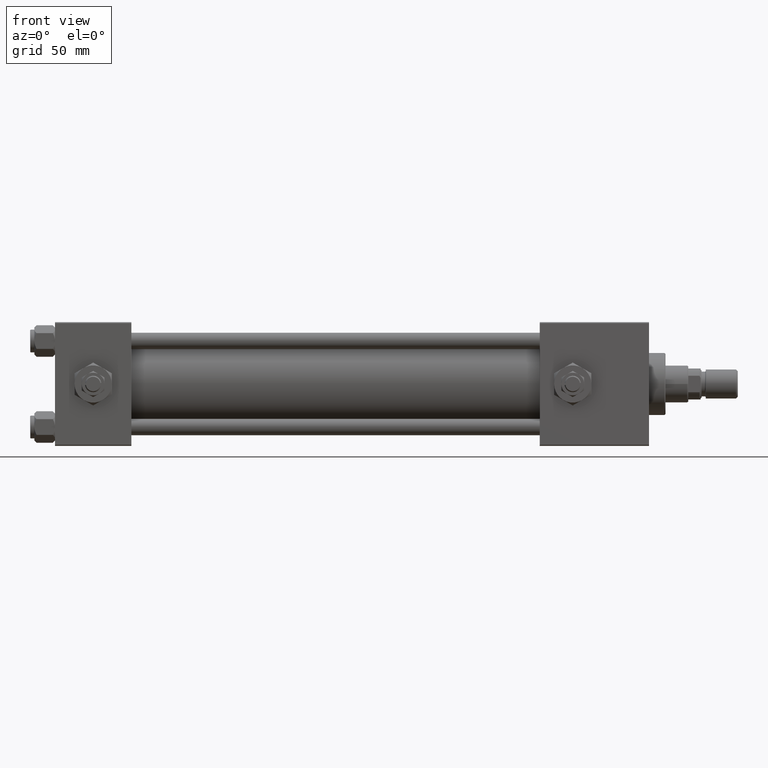
[diagram: clean part render]
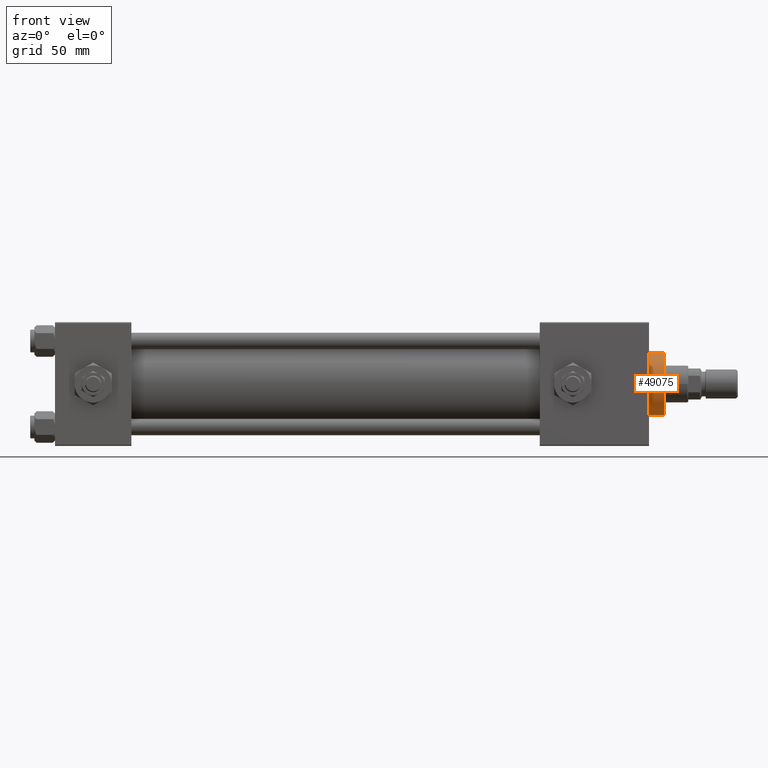
[diagram: same view with one face highlighted and labeled with its STEP entity id]
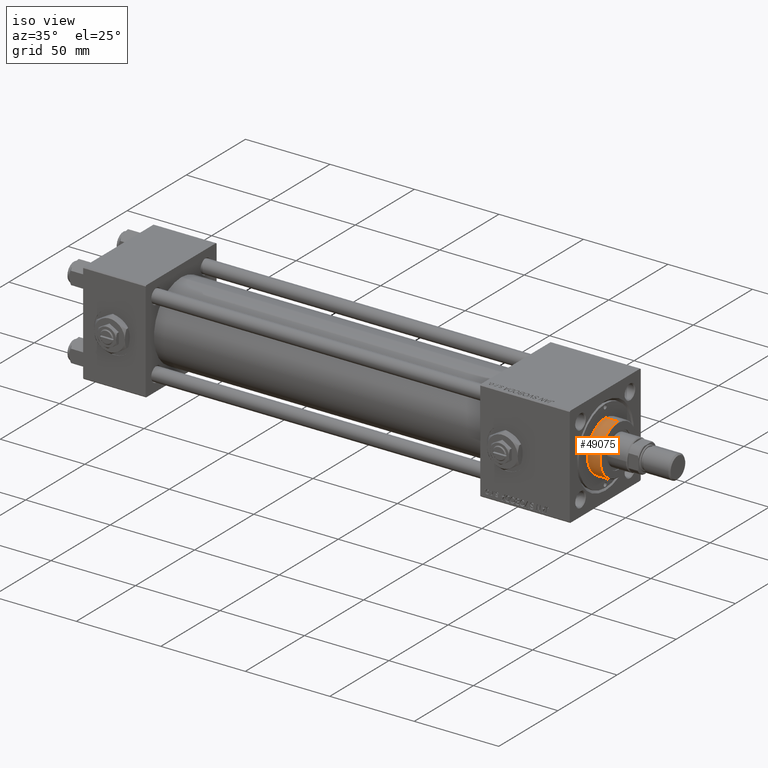
[diagram: same view with one face highlighted and labeled with its STEP entity id]
A machine part, front view. The second image highlights one B-rep face of the part: STEP entity #49075.
A second angle (iso view) of the same face is appended — the face is thin or edge-on in the first view.
In plain terms, the highlighted cylindrical surface (edge-blend (fillet) strip) has radius 15 mm, axis along (-1, -0, -0).
Its self-contained STEP definition (entity closure, byte-faithful):
#1168 = DIRECTION ( 'NONE',  ( -0.000000000000000000, -0.000000000000000000, -1.000000000000000000 ) ) ;
#1674 = VERTEX_POINT ( 'NONE', #7887 ) ;
#2731 = EDGE_CURVE ( 'NONE', #29834, #14965, #10314, .T. ) ;
#3456 = DIRECTION ( 'NONE',  ( 0.000000000000000000, 0.000000000000000000, 1.000000000000000000 ) ) ;
#3679 = CARTESIAN_POINT ( 'NONE',  ( -15.00000000000000000, 0.000000000000000000, 28.69999999999999929 ) ) ;
#5152 = CARTESIAN_POINT ( 'NONE',  ( 15.00000000000000000, 1.836970198721029589E-15, 28.69999999999999929 ) ) ;
#5186 = CYLINDRICAL_SURFACE ( 'NONE', #34503, 15.00000000000000000 ) ;
#5355 = CARTESIAN_POINT ( 'NONE',  ( -15.00000000000000000, 0.000000000000000000, 36.20000000000000284 ) ) ;
#7086 = CIRCLE ( 'NONE', #7910, 15.00000000000000000 ) ;
#7328 = LINE ( 'NONE', #31933, #32104 ) ;
#7887 = CARTESIAN_POINT ( 'NONE',  ( 15.00000000000000000, 1.836970198721029589E-15, 36.20000000000000284 ) ) ;
#7910 = AXIS2_PLACEMENT_3D ( 'NONE', #11753, #3456, #44390 ) ;
#8128 = DIRECTION ( 'NONE',  ( -1.000000000000000000, 0.000000000000000000, 0.000000000000000000 ) ) ;
#10314 = LINE ( 'NONE', #38914, #22893 ) ;
#10552 = EDGE_CURVE ( 'NONE', #1674, #10810, #7328, .T. ) ;
#10810 = VERTEX_POINT ( 'NONE', #5152 ) ;
#11753 = CARTESIAN_POINT ( 'NONE',  ( 0.000000000000000000, 0.000000000000000000, 28.69999999999999929 ) ) ;
#12992 = EDGE_LOOP ( 'NONE', ( #25597, #38789, #22187, #30447 ) ) ;
#14539 = CARTESIAN_POINT ( 'NONE',  ( 0.000000000000000000, 0.000000000000000000, 36.20000000000000284 ) ) ;
#14965 = VERTEX_POINT ( 'NONE', #3679 ) ;
#22187 = ORIENTED_EDGE ( 'NONE', *, *, #2731, .T. ) ;
#22893 = VECTOR ( 'NONE', #24858, 1000.000000000000000 ) ;
#24858 = DIRECTION ( 'NONE',  ( -0.000000000000000000, -0.000000000000000000, -1.000000000000000000 ) ) ;
#25597 = ORIENTED_EDGE ( 'NONE', *, *, #10552, .F. ) ;
#29834 = VERTEX_POINT ( 'NONE', #5355 ) ;
#30447 = ORIENTED_EDGE ( 'NONE', *, *, #42624, .T. ) ;
#31933 = CARTESIAN_POINT ( 'NONE',  ( 15.00000000000000000, 1.836970198721029589E-15, 36.69999999999999574 ) ) ;
#32104 = VECTOR ( 'NONE', #35669, 1000.000000000000000 ) ;
#34503 = AXIS2_PLACEMENT_3D ( 'NONE', #37818, #1168, #8128 ) ;
#35372 = DIRECTION ( 'NONE',  ( 0.000000000000000000, 0.000000000000000000, -1.000000000000000000 ) ) ;
#35669 = DIRECTION ( 'NONE',  ( -0.000000000000000000, -0.000000000000000000, -1.000000000000000000 ) ) ;
#37818 = CARTESIAN_POINT ( 'NONE',  ( 0.000000000000000000, 0.000000000000000000, 36.69999999999999574 ) ) ;
#38789 = ORIENTED_EDGE ( 'NONE', *, *, #44418, .T. ) ;
#38914 = CARTESIAN_POINT ( 'NONE',  ( -15.00000000000000000, 0.000000000000000000, 36.69999999999999574 ) ) ;
#41844 = FACE_OUTER_BOUND ( 'NONE', #12992, .T. ) ;
#42624 = EDGE_CURVE ( 'NONE', #14965, #10810, #7086, .T. ) ;
#44390 = DIRECTION ( 'NONE',  ( 1.000000000000000000, 0.000000000000000000, 0.000000000000000000 ) ) ;
#44418 = EDGE_CURVE ( 'NONE', #1674, #29834, #44620, .T. ) ;
#44620 = CIRCLE ( 'NONE', #48852, 15.00000000000000000 ) ;
#47169 = DIRECTION ( 'NONE',  ( 1.000000000000000000, 0.000000000000000000, 0.000000000000000000 ) ) ;
#48852 = AXIS2_PLACEMENT_3D ( 'NONE', #14539, #35372, #47169 ) ;
#49075 = ADVANCED_FACE ( 'NONE', ( #41844 ), #5186, .T. ) ;